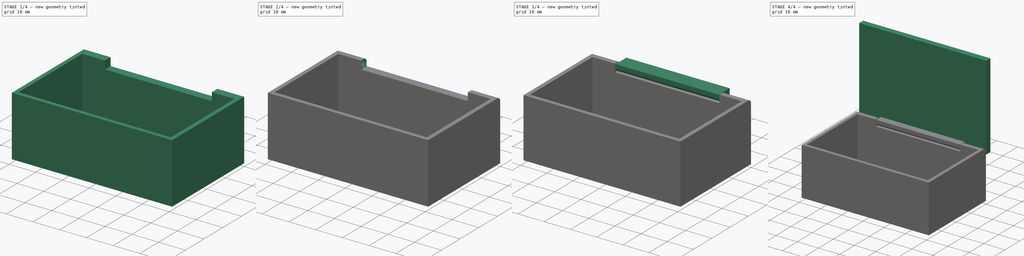
[diagram: build sequence overview — one tinted view per stage of 4, left to right]
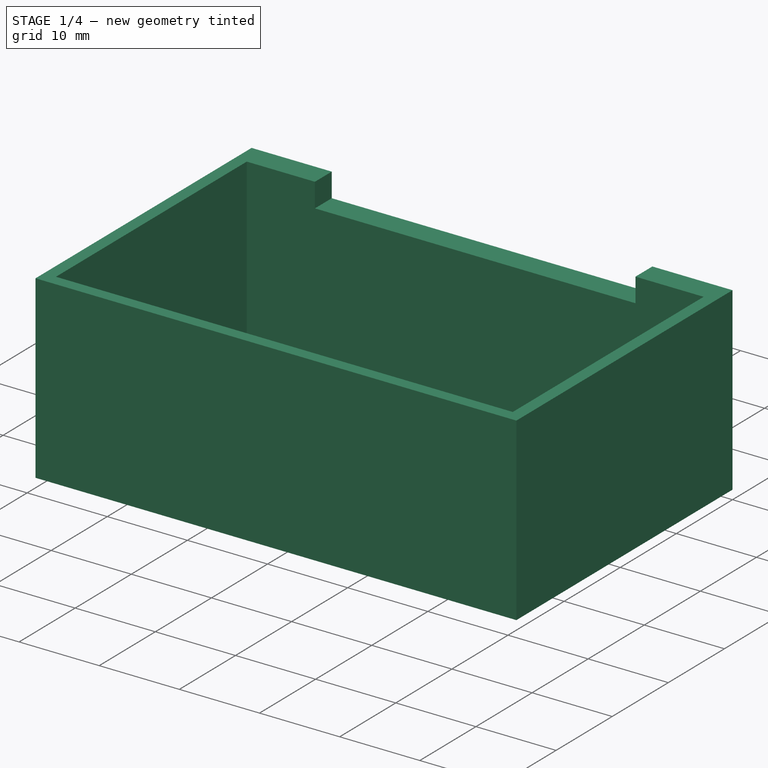
[diagram: stage 1 of 4 — iso view after this stage's code; geometry added in this stage tinted green]
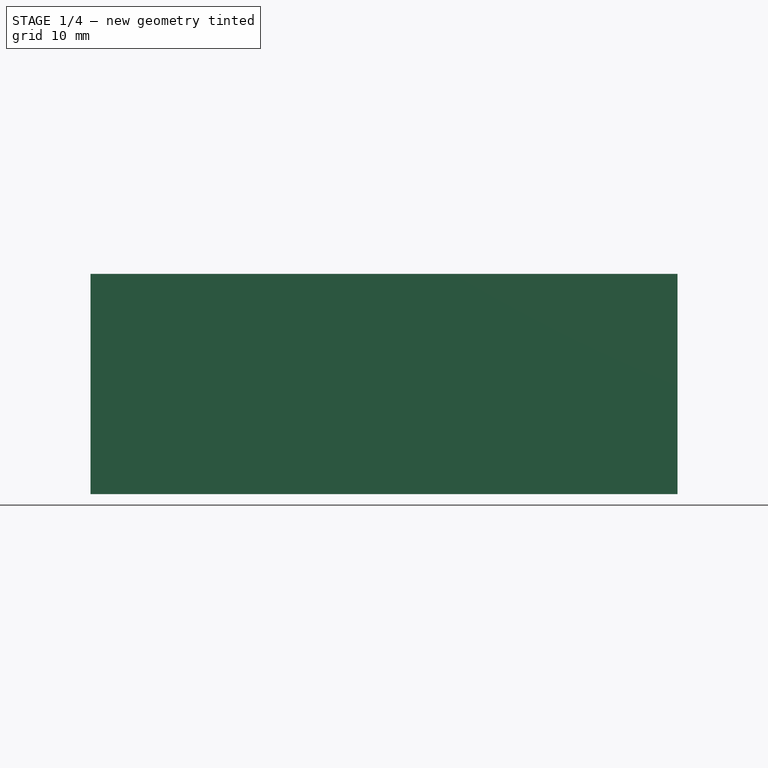
[diagram: stage 1 of 4 — front view after this stage's code; geometry added in this stage tinted green]
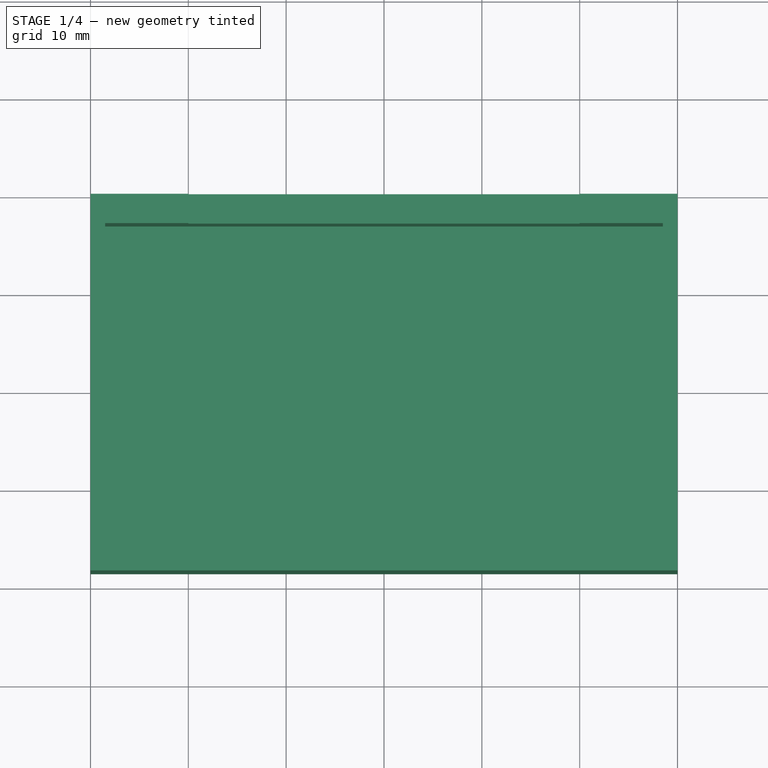
[diagram: stage 1 of 4 — top view after this stage's code; geometry added in this stage tinted green]
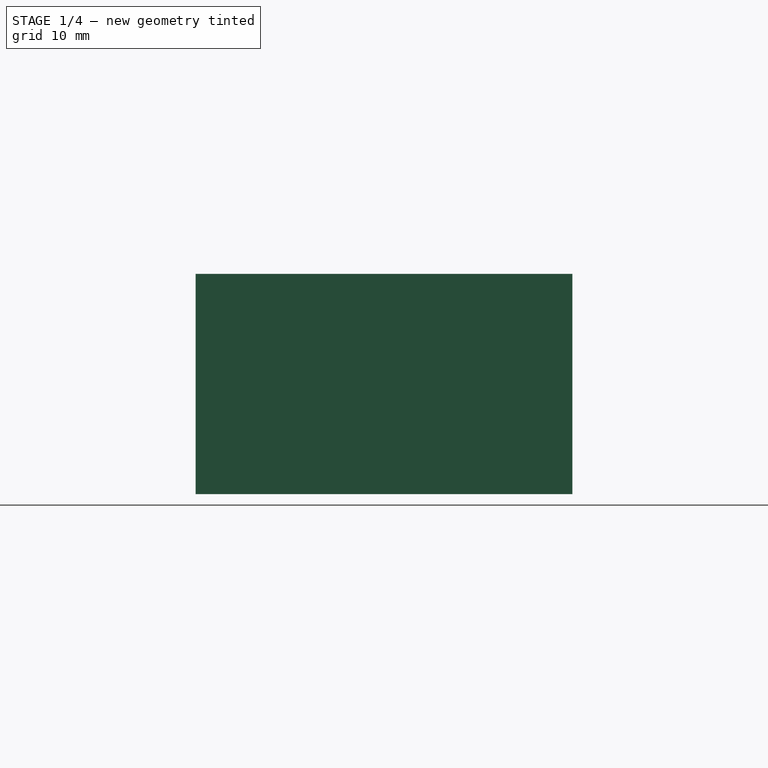
[diagram: stage 1 of 4 — right view after this stage's code; geometry added in this stage tinted green]
FCSTD DOCUMENT  (FreeCAD 1.1R41446 (Git))
Label: каёбка
License: All rights reserved
LicenseURL: https://en.wikipedia.org/wiki/All_rights_reserved
objects: Sketcher::SketchObject×9, PartDesign::Pad×6, App::Point×2, PartDesign::Pocket×2, PartDesign::Body×2, Measure::MeasureDistance×2, PartDesign::SubShapeBinder×1, PartDesign::Mirrored×1, Part::DatumLine×1, Part::DatumPlane×1, PartDesign::Revolution×1, PartDesign::Fillet×1, App::DocumentObjectGroup×1, Part::MultiFuse×1
note: 54 computed .brp shape members not serialized (recipe doc carries the construction recipe); baked Part::Feature solids carry a one-line shape summary decoded from their .brp

FEATURE [App::Point] Origin001  label="Начало координат"
  Role = Origin
FEATURE [Sketcher::SketchObject] Sketch
  ArcFitTolerance = 1e-06
  AttachmentSupport = -> [Origin]
  ExternalTypes = [0]
  FullyConstrained = true
  MakeInternals = false
  MapMode = 5
  sketch-geometry (13):
    g0: LineSegment StartX=-28.5 StartY=-17 StartZ=0 EndX=28.5 EndY=-17 EndZ=0
    g1: LineSegment StartX=28.5 StartY=-17 StartZ=0 EndX=28.5 EndY=17 EndZ=0
    g2: LineSegment StartX=28.5 StartY=17 StartZ=0 EndX=-28.5 EndY=17 EndZ=0
    g3: LineSegment StartX=-28.5 StartY=17 StartZ=0 EndX=-28.5 EndY=-17 EndZ=0
    g4: GeomPoint [constr] X=0 Y=0 Z=0
    g5: LineSegment StartX=-30 StartY=-18.5 StartZ=0 EndX=30 EndY=-18.5 EndZ=0
    g6: LineSegment StartX=30 StartY=-18.5 StartZ=0 EndX=30 EndY=20 EndZ=0
    g7: LineSegment StartX=30 StartY=20 StartZ=0 EndX=-30 EndY=20 EndZ=0
    g8: LineSegment StartX=-30 StartY=20 StartZ=0 EndX=-30 EndY=-18.5 EndZ=0
    g9: GeomPoint [constr] X=0 Y=0 Z=0
    g10: LineSegment [constr] StartX=28.5 StartY=20 StartZ=0 EndX=28.5 EndY=17 EndZ=0
    g11: LineSegment [constr] StartX=28.5 StartY=17 StartZ=0 EndX=30 EndY=17 EndZ=0
    g12: LineSegment [constr] StartX=-28.5 StartY=-17 StartZ=0 EndX=-30 EndY=-17 EndZ=0
  constraints (34):
    c: Coincident(g0,g1)
    c: Coincident(g1,g2)
    c: Coincident(g2,g3)
    c: Coincident(g3,g0)
    c: Horizontal(g0)
    c: Horizontal(g2)
    c: Vertical(g1)
    c: Vertical(g3)
    c: Symmetric(g2,g0,g4)
    c: Coincident(g5,g6)
    c: Coincident(g6,g7)
    c: Coincident(g7,g8)
    c: Coincident(g8,g5)
    c: Horizontal(g5)
    c: Horizontal(g7)
    c: Vertical(g6)
    c: Vertical(g8)
    c: Coincident(g9,g4)
    c: PointOnObject(g10,g7)
    c: Coincident(g10,g1)
    c: Vertical(g10)
    c: Coincident(g10,g11)
    c: PointOnObject(g11,g6)
    c: Coincident(g0,g12)
    c: PointOnObject(g12,g8)
    c: Horizontal(g12)
    c: Horizontal(g11)
    c: DistanceX(g12,g12) = 1.5
    c: Coincident(g4,g-1)
    c: DistanceX(g7,g7) = 60
    c: DistanceY(g8,g8) = 38.5
    c: DistanceY(g10,g10) = 3
    c: Block(g7)
    c: Block(g2)
FEATURE [PartDesign::Pad] Pad
  Direction = (0,0,1)
  Length = 20
  Length2 = 10
  Profile = -> Sketch
  ReferenceAxis = -> Sketch [N_Axis]
  Refine = true
  Suppressed = false
  Type = 0
FEATURE [PartDesign::SubShapeBinder] Binder
  BindCopyOnChange = 0
  BindMode = 0
  ClaimChildren = false
  Context = -> Body [Binder.]
  Fuse = false
  MakeFace = true
  OffsetFill = false
  OffsetIntersection = false
  OffsetJoinType = 0
  OffsetOpenResult = false
  PartialLoad = false
  Refine = true
  Relative = true
  Support = -> [Pad[Edge3,Edge6,Edge11,Edge9]]
  _Version = 2
FEATURE [PartDesign::Pad] Pad001
  BaseFeature = -> Pad
  Direction = (0,0,1)
  Length = 2.5
  Length2 = 10
  Profile = -> Binder
  Refine = true
  Reversed = true
  Suppressed = false
  Type = 0
FEATURE [Sketcher::SketchObject] Sketch001
  ArcFitTolerance = 1e-06
  AttachmentSupport = -> [Pad001]
  ExternalGeometry = -> [Pad001]
  ExternalTypes = [0]
  FullyConstrained = true
  MakeInternals = false
  MapMode = 5
  Placement = pos=(0,20,0) rot=(0,0.707107,0.707107;3.14159rad)
  sketch-geometry (5):
    g0: LineSegment StartX=-20 StartY=20 StartZ=0 EndX=-20 EndY=17 EndZ=0
    g1: LineSegment StartX=-20 StartY=17 StartZ=0 EndX=20 EndY=17 EndZ=0
    g2: LineSegment StartX=20 StartY=17 StartZ=0 EndX=20 EndY=20 EndZ=0
    g3: LineSegment StartX=-20 StartY=20 StartZ=0 EndX=20 EndY=20 EndZ=0
    g4: GeomPoint X=0 Y=20 Z=0
  constraints (13):
    c: PointOnObject(g0,g-3)
    c: Coincident(g0,g1)
    c: Horizontal(g1)
    c: Coincident(g1,g2)
    c: PointOnObject(g2,g-3)
    c: Coincident(g0,g3)
    c: Coincident(g3,g2)
    c: Vertical(g2)
    c: Vertical(g0)
    c: Symmetric(g0,g2,g4)
    c: PointOnObject(g4,g-2)
    c: DistanceX(g-3,g0) = 10
    c: DistanceY(g0,g0) = 3
FEATURE [PartDesign::Pocket] Pocket
  BaseFeature = -> Pad001
  Direction = (0,-1,2e-16)
  Length = 0
  Length2 = 5
  Profile = -> Sketch001
  ReferenceAxis = -> Sketch001 [N_Axis]
  Refine = true
  Suppressed = false
  Type = 3
  UpToFace = -> Pad001 [Face6]
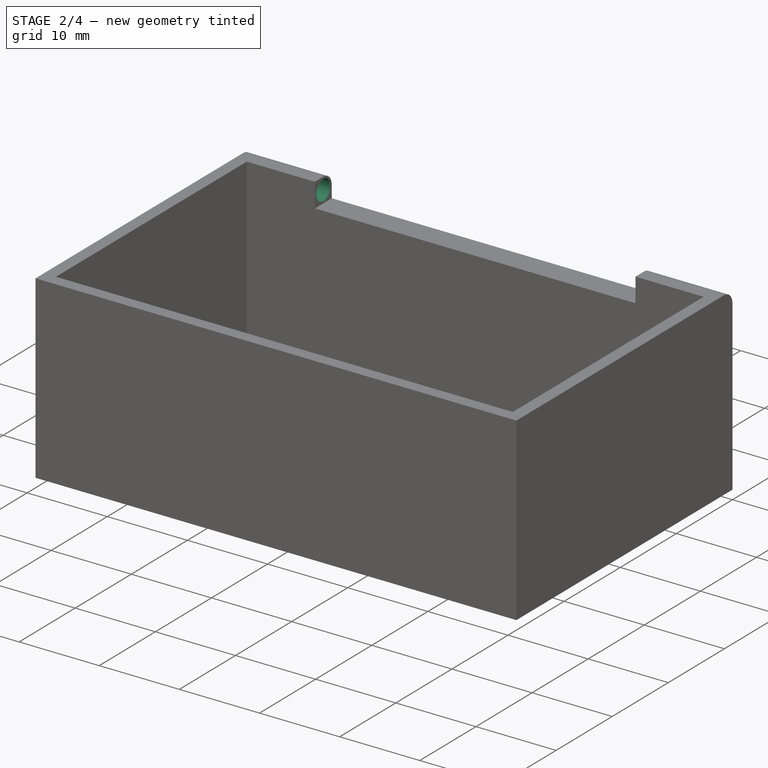
[diagram: stage 2 of 4 — iso view after this stage's code; geometry added in this stage tinted green]
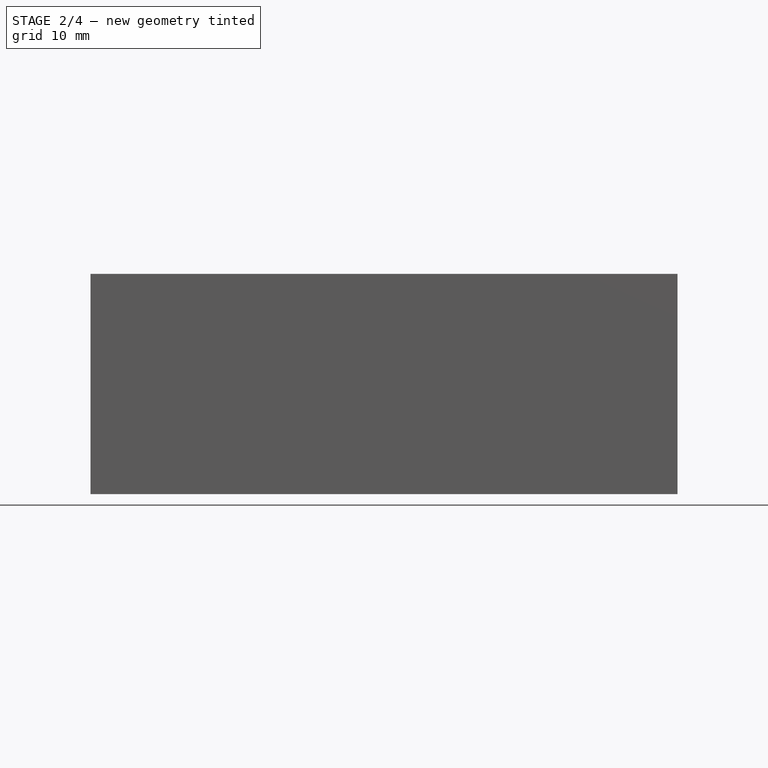
[diagram: stage 2 of 4 — front view after this stage's code; geometry added in this stage tinted green]
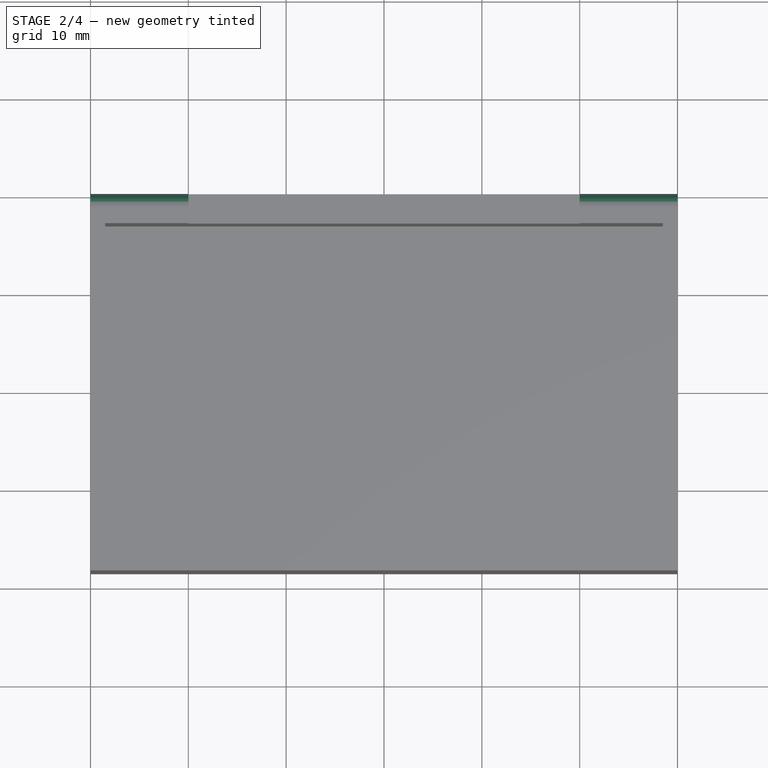
[diagram: stage 2 of 4 — top view after this stage's code; geometry added in this stage tinted green]
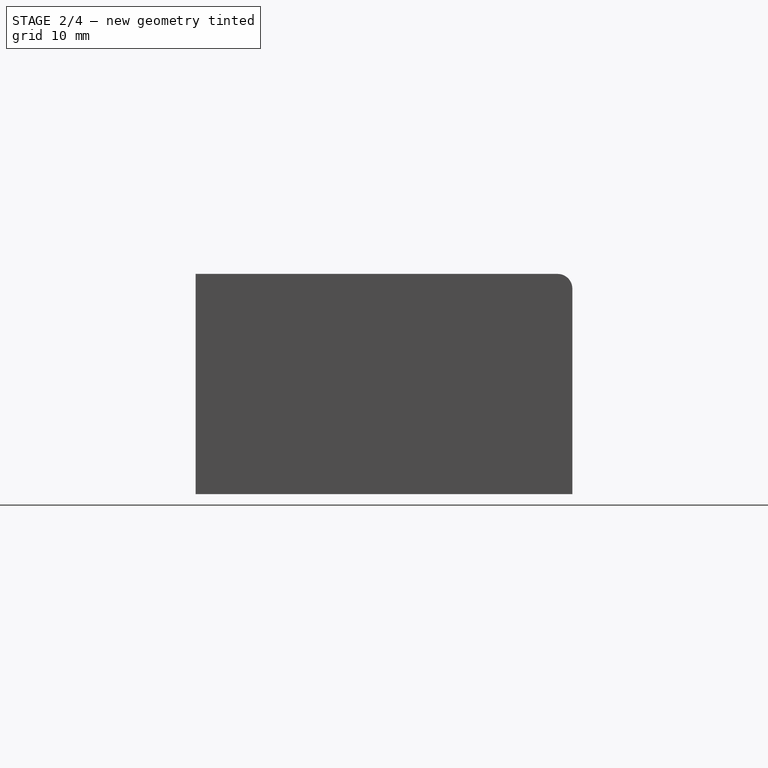
[diagram: stage 2 of 4 — right view after this stage's code; geometry added in this stage tinted green]
FEATURE [Sketcher::SketchObject] Sketch002
  ArcFitTolerance = 1e-06
  AttachmentSupport = -> [Pocket]
  ExternalGeometry = -> [Pocket]
  ExternalTypes = [0,0,0,0]
  FullyConstrained = true
  MakeInternals = false
  MapMode = 5
  Placement = pos=(20,0,0) rot=(0.57735,-0.57735,-0.57735;2.0944rad)
  sketch-geometry (1):
    g0: Circle CenterX=-18.5 CenterY=18.5 CenterZ=0 NormalX=0 NormalY=0 NormalZ=1 AngleXU=0 Radius=1.25
  constraints (3):
    c: Symmetric(g-4,g-6,g0)
    c: Diameter(g0) = 2.5
    c: DistanceX(g-4,g-4) = 3  'l1'
FEATURE [PartDesign::Pocket] Pocket001
  BaseFeature = -> Pocket
  Direction = (1,0,0)
  Length = 7.5
  Length2 = 5
  Profile = -> Sketch002
  ReferenceAxis = -> Sketch002 [N_Axis]
  Refine = true
  Suppressed = false
  Type = 0
FEATURE [PartDesign::Mirrored] Mirrored
  BaseFeature = -> Pocket001
  MirrorPlane = -> YZ_Plane
  Originals = -> [Pocket001]
  Refine = true
  Suppressed = false
  TransformMode = 0
FEATURE [PartDesign::Fillet] Fillet
  Base = -> Mirrored [Edge12,Edge16]
  BaseFeature = -> Mirrored
  Radius = 1.5
  Refine = true
  SupportTransform = false
  Suppressed = false
  UseAllEdges = false
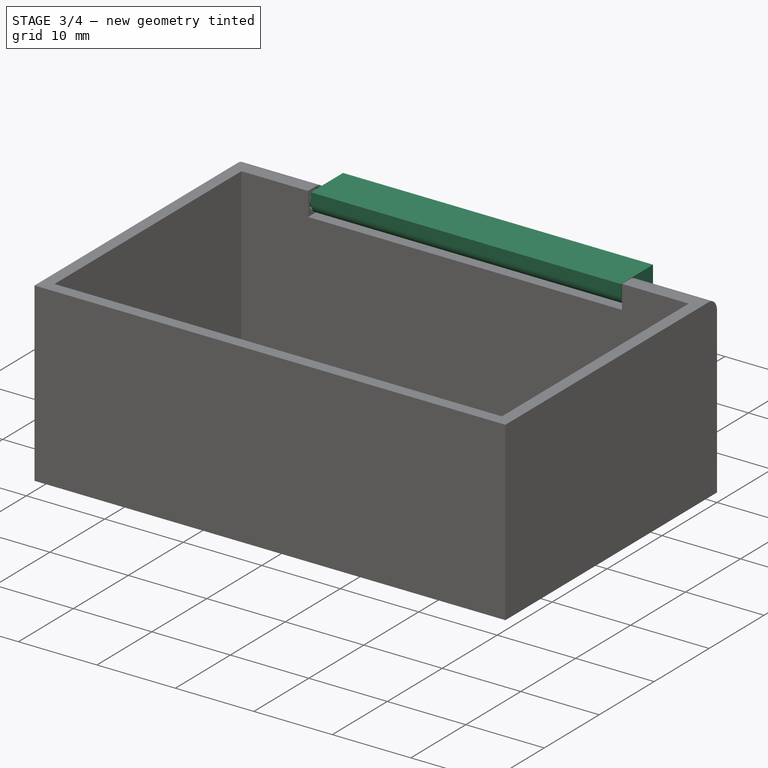
[diagram: stage 3 of 4 — iso view after this stage's code; geometry added in this stage tinted green]
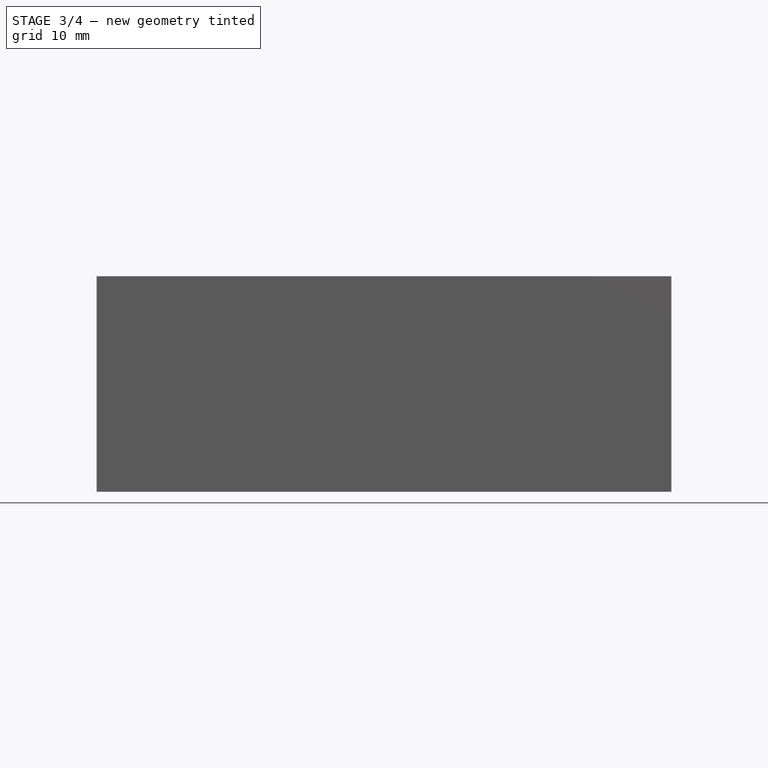
[diagram: stage 3 of 4 — front view after this stage's code; geometry added in this stage tinted green]
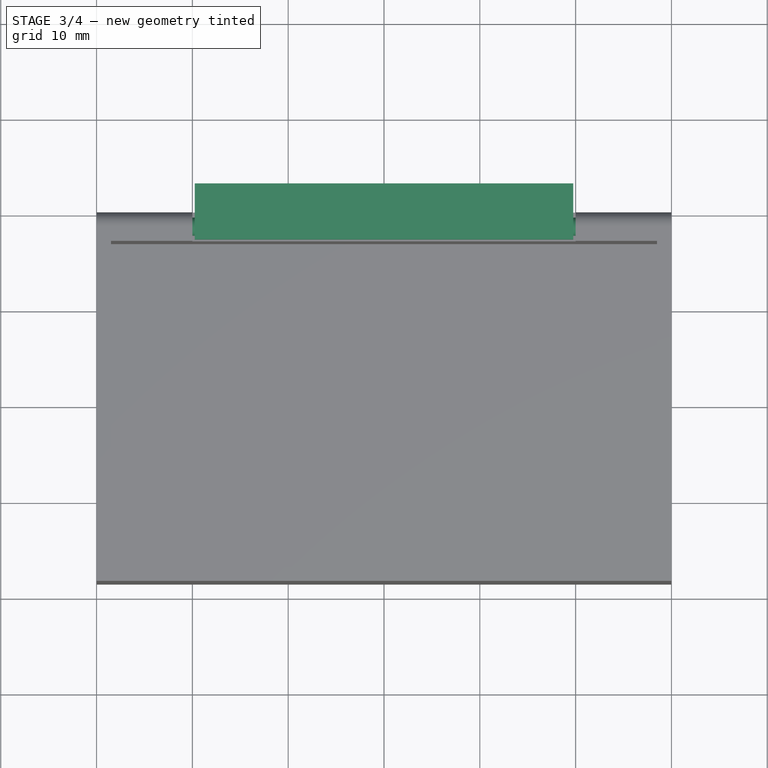
[diagram: stage 3 of 4 — top view after this stage's code; geometry added in this stage tinted green]
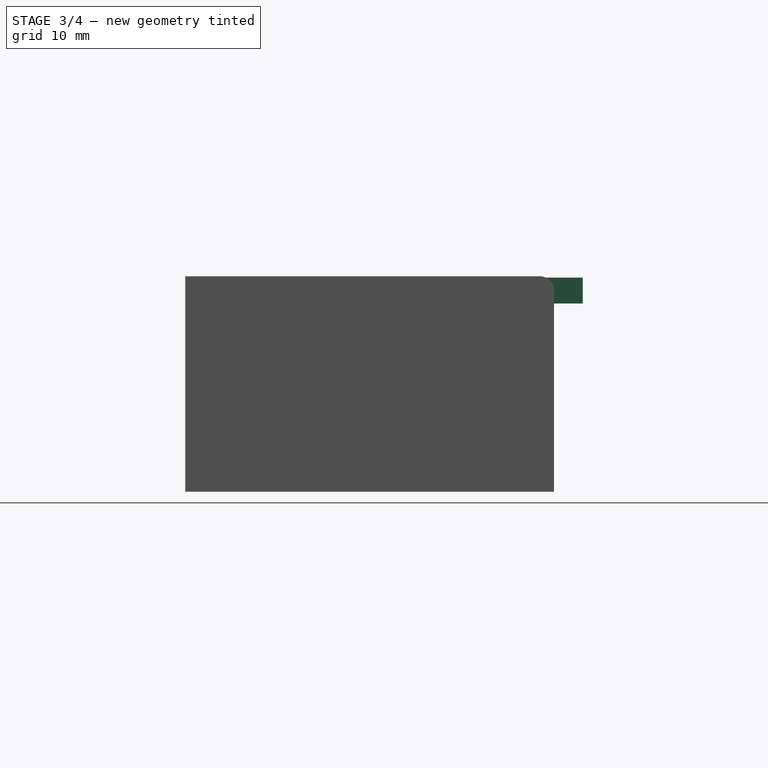
[diagram: stage 3 of 4 — right view after this stage's code; geometry added in this stage tinted green]
FEATURE [App::Point] Origin003  label="Начало координат002"
  Role = Origin
FEATURE [Part::DatumLine] DatumLine
  AttacherType = Attacher::AttachEngineLine
  AttachmentOffset = pos=(0,-1.5,0) rot=(0,0,1;0rad)
  MapMode = 31
  Placement = pos=(0,20,18.5) rot=(0.57735,-0.57735,-0.57735;2.0944rad)
FEATURE [Part::DatumPlane] DatumPlane
  AttachmentOffset = pos=(0,0,1.5) rot=(0,0,1;0rad)
  AttachmentSupport = -> [DatumLine]
  MapMode = 4
  Placement = pos=(0,18.5,18.5) rot=(0.57735,-0.57735,0.57735;2.0944rad)
FEATURE [Sketcher::SketchObject] Sketch003
  ArcFitTolerance = 1e-06
  AttachmentSupport = -> [DatumPlane]
  ExternalTypes = [0,0,0,0]
  FullyConstrained = true
  MakeInternals = false
  MapMode = 5
  Placement = pos=(0,18.5,18.5) rot=(0.57735,-0.57735,0.57735;2.0944rad)
  sketch-geometry (19):
    g0: LineSegment [constr] StartX=1.25 StartY=-27.5 StartZ=0 EndX=1.25 EndY=-20 EndZ=0
    g1: LineSegment [constr] StartX=-1.25 StartY=-27.5 StartZ=0 EndX=-1.25 EndY=-20 EndZ=0
    g2: LineSegment [constr] StartX=-1.25 StartY=27.5 StartZ=0 EndX=-1.25 EndY=20 EndZ=0
    g3: LineSegment [constr] StartX=1.25 StartY=27.5 StartZ=0 EndX=1.25 EndY=20 EndZ=0
    g4: LineSegment StartX=0 StartY=-27 StartZ=0 EndX=0.95 EndY=-27 EndZ=0
    g5: LineSegment StartX=0.95 StartY=-27 StartZ=0 EndX=0.95 EndY=-19.75 EndZ=0
    g6: LineSegment StartX=0.95 StartY=-19.75 StartZ=0 EndX=1.35 EndY=-19.75 EndZ=0
    g7: LineSegment StartX=1.35 StartY=-19.75 StartZ=0 EndX=1.35 EndY=19.75 EndZ=0
    g8: LineSegment StartX=1.35 StartY=19.75 StartZ=0 EndX=0.95 EndY=19.75 EndZ=0
    g9: LineSegment StartX=0.95 StartY=19.75 StartZ=0 EndX=0.95 EndY=27 EndZ=0
    g10: LineSegment StartX=0.95 StartY=27 StartZ=0 EndX=0 EndY=27 EndZ=0
    g11: LineSegment [constr] StartX=0 StartY=27 StartZ=0 EndX=-0.95 EndY=27 EndZ=0
    g12: LineSegment [constr] StartX=-0.95 StartY=27 StartZ=0 EndX=-0.95 EndY=19.75 EndZ=0
    g13: LineSegment [constr] StartX=-0.95 StartY=19.75 StartZ=0 EndX=-1.35 EndY=19.75 EndZ=0
    g14: LineSegment [constr] StartX=-1.35 StartY=19.75 StartZ=0 EndX=-1.35 EndY=-19.75 EndZ=0
    g15: LineSegment [constr] StartX=-1.35 StartY=-19.75 StartZ=0 EndX=-0.95 EndY=-19.75 EndZ=0
    g16: LineSegment [constr] StartX=-0.95 StartY=-19.75 StartZ=0 EndX=-0.95 EndY=-27 EndZ=0
    g17: LineSegment [constr] StartX=-0.95 StartY=-27 StartZ=0 EndX=0 EndY=-27 EndZ=0
    g18: LineSegment StartX=0 StartY=27 StartZ=0 EndX=0 EndY=-27 EndZ=0
  constraints (56):
    c: Coincident(g-6,g0)
    c: Coincident(g-6,g1)
    c: Vertical(g1)
    c: Coincident(g-5,g2)
    c: Vertical(g2)
    c: Vertical(g3)
    c: Coincident(g3,g-5)
    c: Vertical(g0)
    c: PointOnObject(g4,g-2)
    c: Coincident(g4,g5)
    c: Vertical(g5)
    c: Coincident(g5,g6)
    c: Coincident(g6,g7)
    c: Coincident(g7,g8)
    c: Coincident(g8,g9)
    c: Vertical(g9)
    c: Coincident(g9,g10)
    c: Horizontal(g10)
    c: Coincident(g10,g11)
    c: Horizontal(g11)
    c: Coincident(g11,g12)
    c: Vertical(g12)
    c: Coincident(g12,g13)
    c: Horizontal(g13)
    c: Coincident(g13,g14)
    c: Coincident(g14,g15)
    c: Coincident(g15,g16)
    c: Vertical(g16)
    c: Coincident(g16,g17)
    c: Coincident(g17,g4)
    c: Horizontal(g4)
    c: Horizontal(g17)
    c: Horizontal(g15)
    c: Horizontal(g6)
    c: Horizontal(g8)
    c: DistanceY(g10,g3) = 0.5
    c: Symmetric(g10,g4,g-1)
    c: Equal(g4,g17)
    c: Equal(g11,g10)
    c: DistanceY(g8,g3) = 0.25
    c: Horizontal(g12,g8)
    c: Distance(g7,g14) = 2.7
    c: Equal(g13,g8)
    c: Symmetric(g14,g13,g-1)
    c: Symmetric(g6,g7,g-1)
    c: Equal(g4,g10)
    c: PointOnObject(g18,g11)
    c: Coincident(g18,g4)
    c: Vertical(g18)
    c: DistanceX(g9,g3) = 0.3
    c: PointOnObject(g3,g-3)
    c: PointOnObject(g2,g-3)
    c: PointOnObject(g1,g-4)
    c: PointOnObject(g0,g-4)
    c: Block(g8)
    c: Block(g6)
FEATURE [PartDesign::Revolution] Revolution
  Angle = 360
  Angle2 = 60
  Axis = (-1,0,0)
  Base = (0,18.5,18.5)
  Placement = pos=(0,18.5,18.5) rot=(0.57735,-0.57735,0.57735;2.0944rad)
  Profile = -> Sketch003
  ReferenceAxis = -> Sketch003 [V_Axis]
  Refine = true
  Reversed = true
  Suppressed = false
  Type = 0
FEATURE [Sketcher::SketchObject] Sketch004
  ArcFitTolerance = 1e-06
  AttachmentSupport = -> [Revolution]
  ExternalGeometry = -> [Revolution]
  ExternalTypes = [0]
  FullyConstrained = true
  MakeInternals = false
  MapMode = 5
  Placement = pos=(19.75,18.5,18.5) rot=(0.707107,0,0.707107;3.14159rad)
  sketch-geometry (6):
    g0: ArcOfCircle CenterX=0 CenterY=0 CenterZ=0 NormalX=0 NormalY=0 NormalZ=1 AngleXU=0 Radius=1.35 StartAngle=3.14159 EndAngle=4.71239
    g1: ArcOfCircle CenterX=0 CenterY=0 CenterZ=0 NormalX=0 NormalY=0 NormalZ=1 AngleXU=0 Radius=1.35 StartAngle=0 EndAngle=1.5708
    g2: LineSegment StartX=-2e-16 StartY=-1.35 StartZ=0 EndX=-1.35 EndY=-1.35 EndZ=0
    g3: LineSegment StartX=-1.35 StartY=2e-16 StartZ=0 EndX=-1.35 EndY=-1.35 EndZ=0
    g4: LineSegment StartX=1e-16 StartY=1.35 StartZ=0 EndX=1.35 EndY=1.35 EndZ=0
    g5: LineSegment StartX=1.35 StartY=1.35 StartZ=0 EndX=1.35 EndY=0 EndZ=0
  constraints (14):
    c: Coincident(g0,g-1)
    c: PointOnObject(g0,g-3)
    c: Coincident(g1,g0)
    c: PointOnObject(g1,g-3)
    c: PointOnObject(g1,g-1)
    c: PointOnObject(g0,g-2)
    c: Tangent(g2,g0) = 1.5708
    c: Tangent(g3,g0) = -1.5708
    c: Coincident(g3,g2)
    c: PointOnObject(g0,g-1)
    c: Tangent(g4,g1) = 1.5708
    c: Coincident(g5,g4)
    c: Tangent(g5,g1) = 1.5708
    c: PointOnObject(g1,g-2)
FEATURE [PartDesign::Pad] Pad002
  BaseFeature = -> Revolution
  Direction = (1,0,-2e-16)
  Length = 10
  Length2 = 10
  Placement = pos=(0,18.5,18.5) rot=(0.57735,-0.57735,0.57735;2.0944rad)
  Profile = -> Sketch004
  ReferenceAxis = -> Sketch004 [N_Axis]
  Refine = true
  Suppressed = false
  Type = 3
  UpToFace = -> Revolution [Face5]
FEATURE [Sketcher::SketchObject] Sketch005
  ArcFitTolerance = 1e-06
  AttachmentSupport = -> [Pad002]
  ExternalGeometry = -> [Pad002]
  ExternalTypes = [0,0,0]
  FullyConstrained = false
  MakeInternals = false
  MapMode = 5
  Placement = pos=(19.75,18.5,18.5) rot=(0.707107,0,0.707107;3.14159rad)
  sketch-geometry (3):
    g0: LineSegment StartX=-1.35 StartY=-1.35 StartZ=0 EndX=-1.35 EndY=-4.5 EndZ=0
    g1: LineSegment StartX=1.35 StartY=0 StartZ=0 EndX=1.35 EndY=-4.5 EndZ=0
    g2: LineSegment StartX=1.35 StartY=-4.5 StartZ=0 EndX=-1.35 EndY=-4.5 EndZ=0
  constraints (7):
    c: Coincident(g0,g-3)
    c: Coincident(g2,g1)
    c: Coincident(g2,g0)
    c: Horizontal(g2)
    c: Vertical(g0)
    c: Vertical(g1)
    c: DistanceY(g1,g-5) = 3
FEATURE [PartDesign::Pad] Pad003
  BaseFeature = -> Pad002
  Direction = (1,0,-2e-16)
  Length = 10
  Length2 = 10
  Placement = pos=(0,18.5,18.5) rot=(0.57735,-0.57735,0.57735;2.0944rad)
  Profile = -> Sketch005
  ReferenceAxis = -> Sketch005 [N_Axis]
  Refine = true
  Suppressed = false
  Type = 3
  UpToFace = -> Pad002 [Face10]
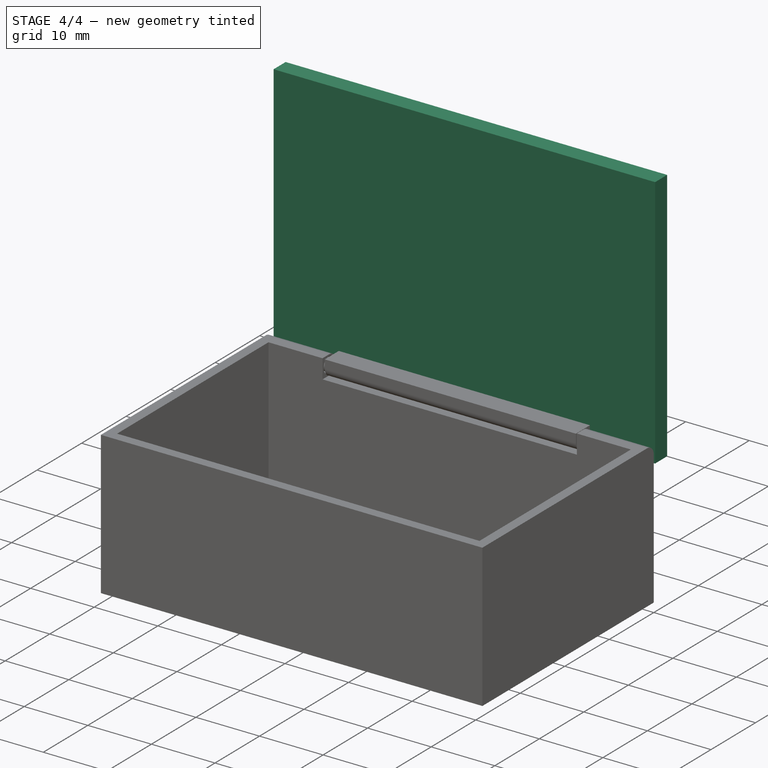
[diagram: stage 4 of 4 — iso view after this stage's code; geometry added in this stage tinted green]
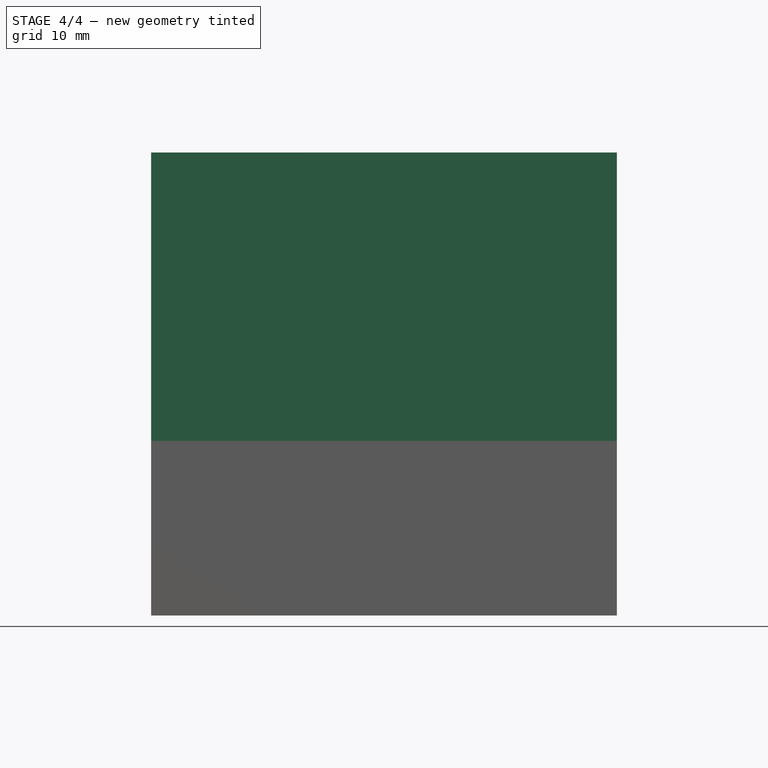
[diagram: stage 4 of 4 — front view after this stage's code; geometry added in this stage tinted green]
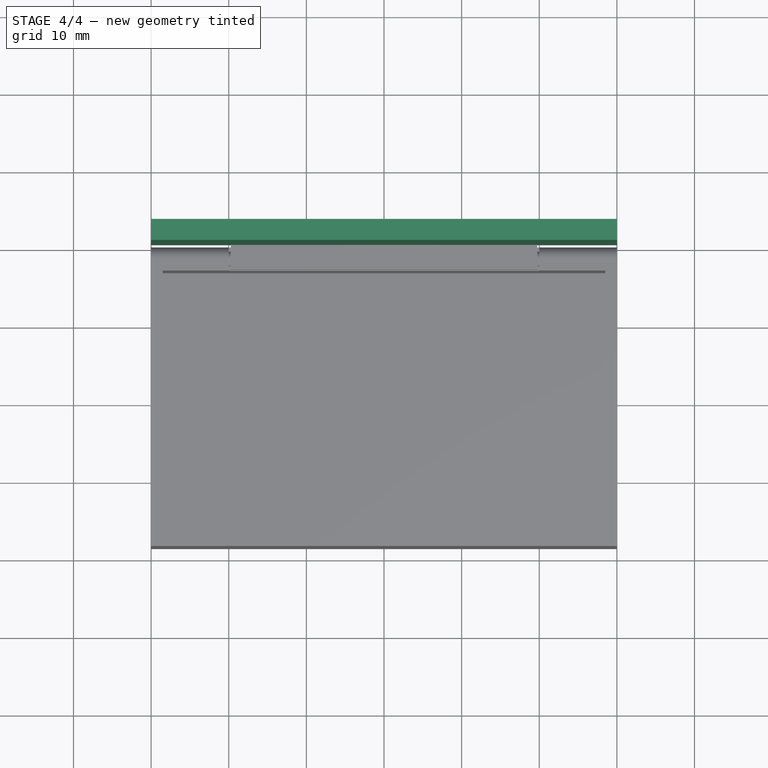
[diagram: stage 4 of 4 — top view after this stage's code; geometry added in this stage tinted green]
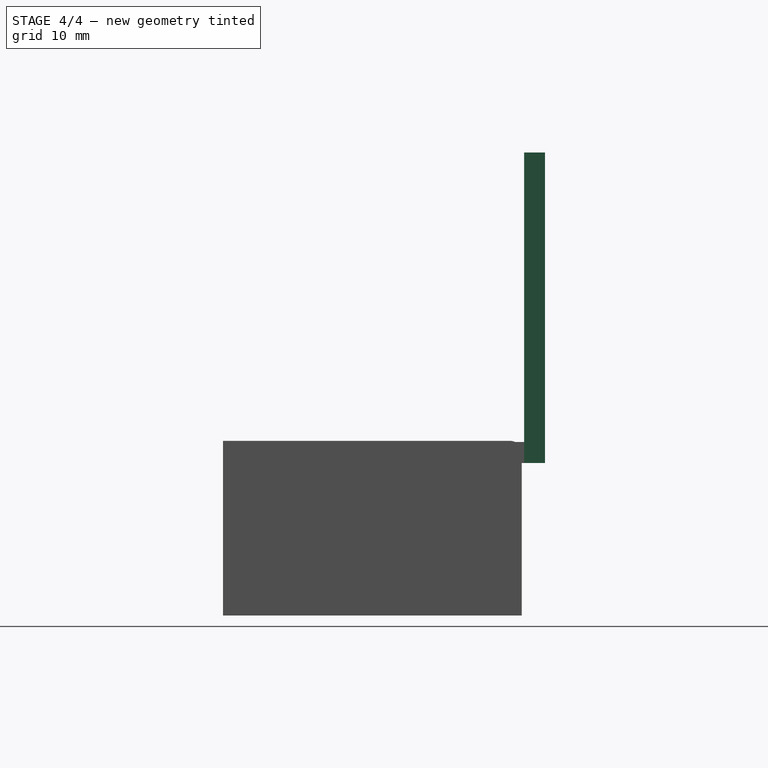
[diagram: stage 4 of 4 — right view after this stage's code; geometry added in this stage tinted green]
FEATURE [Sketcher::SketchObject] Sketch006
  ArcFitTolerance = 1e-06
  AttachmentSupport = -> [Pad003]
  ExternalGeometry = -> [Pad003]
  ExternalTypes = [0,0,0,0,0]
  FullyConstrained = true
  MakeInternals = false
  MapMode = 5
  Placement = pos=(0,18.5,19.85) rot=(0,0,1;3.14159rad)
  sketch-geometry (8):
    g0: LineSegment StartX=-30 StartY=-1.8 StartZ=0 EndX=-19.75 EndY=-1.8 EndZ=0
    g1: LineSegment StartX=19.75 StartY=-1.8 StartZ=0 EndX=30 EndY=-1.8 EndZ=0
    g2: LineSegment StartX=-30 StartY=-1.8 StartZ=0 EndX=-30 EndY=-4.5 EndZ=0
    g3: LineSegment StartX=30 StartY=-4.5 StartZ=0 EndX=30 EndY=-1.8 EndZ=0
    g4: LineSegment StartX=19.75 StartY=-1.8 StartZ=0 EndX=19.75 EndY=-4.5 EndZ=0
    g5: LineSegment StartX=-19.75 StartY=-4.5 StartZ=0 EndX=-19.75 EndY=-1.8 EndZ=0
    g6: LineSegment StartX=-30 StartY=-4.5 StartZ=0 EndX=-19.75 EndY=-4.5 EndZ=0
    g7: LineSegment StartX=30 StartY=-4.5 StartZ=0 EndX=19.75 EndY=-4.5 EndZ=0
  constraints (21):
    c: Horizontal(g0)
    c: PointOnObject(g0,g-4)
    c: Distance(g-6,g0) = 0.3
    c: PointOnObject(g1,g-5)
    c: Horizontal(g1)
    c: Symmetric(g1,g0,g-2)
    c: Vertical(g0,g-6)
    c: Coincident(g0,g2)
    c: Vertical(g2)
    c: Coincident(g3,g1)
    c: Vertical(g3)
    c: Coincident(g1,g4)
    c: Coincident(g4,g-5)
    c: Coincident(g-4,g5)
    c: Coincident(g5,g0)
    c: Coincident(g2,g6)
    c: Coincident(g6,g5)
    c: Coincident(g3,g7)
    c: Coincident(g7,g4)
    c: Horizontal(g7)
    c: Horizontal(g6)
FEATURE [PartDesign::Pad] Pad004
  BaseFeature = -> Pad003
  Direction = (0,-3.66e-14,1)
  Length = 10
  Length2 = 10
  Placement = pos=(0,18.5,18.5) rot=(0.57735,-0.57735,0.57735;2.0944rad)
  Profile = -> Sketch006
  ReferenceAxis = -> Sketch006 [N_Axis]
  Refine = true
  Suppressed = false
  Type = 3
  UpToFace = -> Pad003 [Face11]
FEATURE [Sketcher::SketchObject] Sketch007
  ArcFitTolerance = 1e-06
  AttachmentSupport = -> [Pad004]
  ExternalGeometry = -> [Pad004]
  ExternalTypes = [0]
  FullyConstrained = true
  MakeInternals = false
  MapMode = 5
  Placement = pos=(0,23,18.5) rot=(-0.57735,-0.57735,-0.57735;2.0944rad)
  sketch-geometry (3):
    g0: LineSegment StartX=1.35 StartY=30 StartZ=0 EndX=38.65 EndY=30 EndZ=0
    g1: LineSegment StartX=38.65 StartY=30 StartZ=0 EndX=38.65 EndY=-30 EndZ=0
    g2: LineSegment StartX=38.65 StartY=-30 StartZ=0 EndX=1.35 EndY=-30 EndZ=0
  constraints (8):
    c: Coincident(g-3,g0)
    c: Horizontal(g0)
    c: Coincident(g0,g1)
    c: Vertical(g1)
    c: Coincident(g1,g2)
    c: Coincident(g2,g-3)
    c: Horizontal(g2)
    c: DistanceX(g0,g0) = 37.3
FEATURE [PartDesign::Pad] Pad005
  BaseFeature = -> Pad004
  Direction = (1e-16,1,1.34e-14)
  Length = 10
  Length2 = 10
  Placement = pos=(0,18.5,18.5) rot=(0.57735,-0.57735,0.57735;2.0944rad)
  Profile = -> Sketch007
  ReferenceAxis = -> Sketch007 [N_Axis]
  Refine = true
  Suppressed = false
  Type = 3
  UpToFace = -> Pad004 [Face7]
FEATURE [PartDesign::Body] Body001  label="Тело001"
  AllowCompound = false
  Group = -> [DatumLine,DatumPlane,Sketch003,Revolution,Sketch004,Pad002,Sketch005,Pad003,Sketch006,Pad004,Sketch007,Pad005]
  Origin = -> Origin002
  Tip = -> Pad005
FEATURE [Measure::MeasureDistance] Distance001  label="Distance001: 40,00 mm"
  Distance = 40
  DistanceX = 0
  DistanceY = 6.004e-13
  DistanceZ = 40
  Element1 = -> Body001 [Pad005.Edge4]
  Element2 = -> Body001 [Pad005.Edge13]
  Position1 = (30,23,57.15)
  Position2 = (30,23,17.15)
FEATURE [Sketcher::SketchObject] Sketch008
  ArcFitTolerance = 1e-06
  AttachmentSupport = -> [Fillet]
  ExternalGeometry = -> [Fillet]
  ExternalTypes = [0]
  FullyConstrained = false
  MakeInternals = false
  MapMode = 5
  Placement = pos=(30,0,0) rot=(0.57735,0.57735,0.57735;2.0944rad)
  sketch-geometry (1):
    g0: LineSegment StartX=20 StartY=17 StartZ=0 EndX=21.3946 EndY=17 EndZ=0
  constraints (2):
    c: Coincident(g0,g-3)
    c: Horizontal(g0)
FEATURE [PartDesign::Body] Body  label="Тело"
  AllowCompound = false
  Group = -> [Sketch,Pad,Binder,Pad001,Sketch001,Pocket,Sketch002,Pocket001,Mirrored,Fillet,Sketch008]
  Origin = -> Origin
  Tip = -> Fillet
FEATURE [Measure::MeasureDistance] Distance  label="Distance: 38,53 mm"
  Distance = 38.5292
  DistanceX = 0
  DistanceY = 38.5
  DistanceZ = 1.5
  Element1 = -> Body [Fillet.Vertex8]
  Element2 = -> Body [Fillet.Vertex14]
  Position1 = (30,20,18.5)
  Position2 = (30,-18.5,20)
FEATURE [App::DocumentObjectGroup] Measurements
  Group = -> [Distance,Distance001]
FEATURE [Part::MultiFuse] Fusion
  Refine = true
  Shapes = -> [Body,Body001]
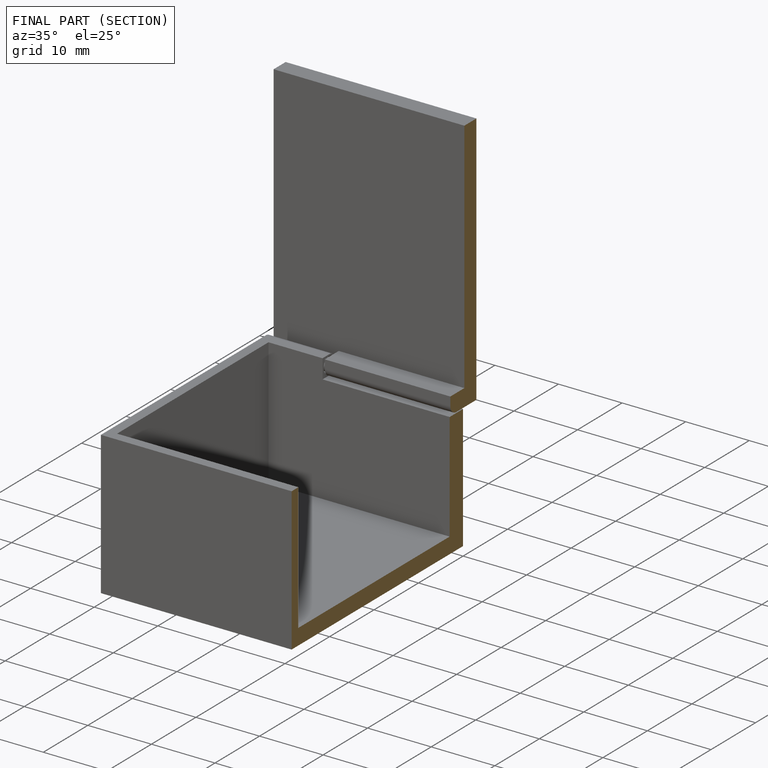
[diagram: finished part — half-section view (interior)]
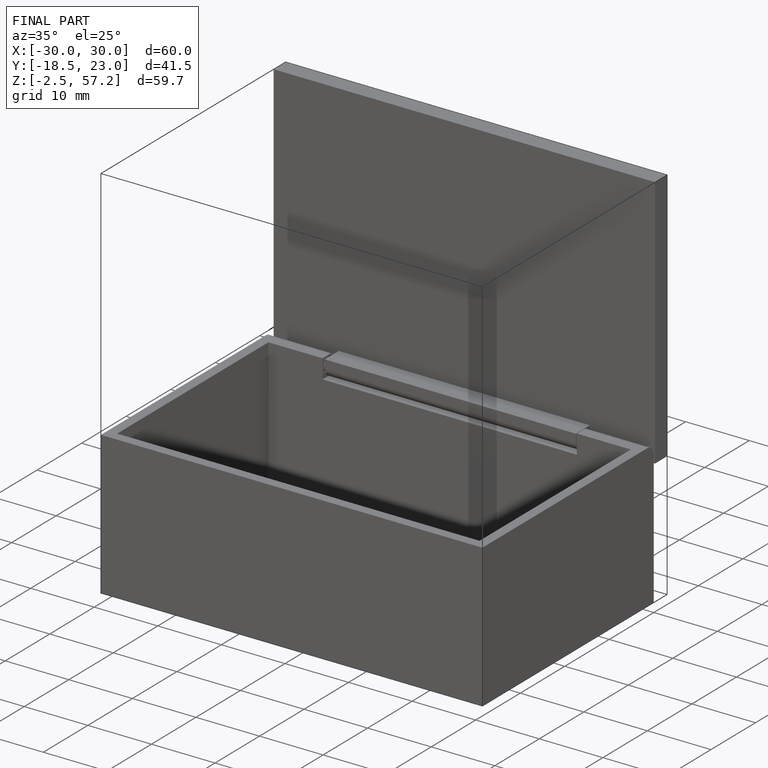
[diagram: finished part — iso view with bounding-box wireframe]
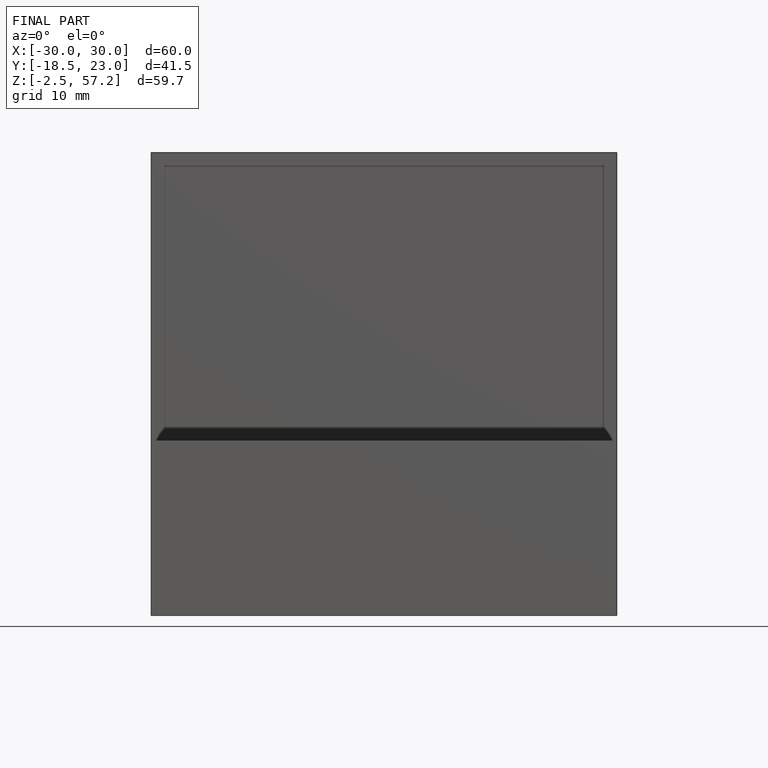
[diagram: finished part — front view with bounding-box wireframe]
